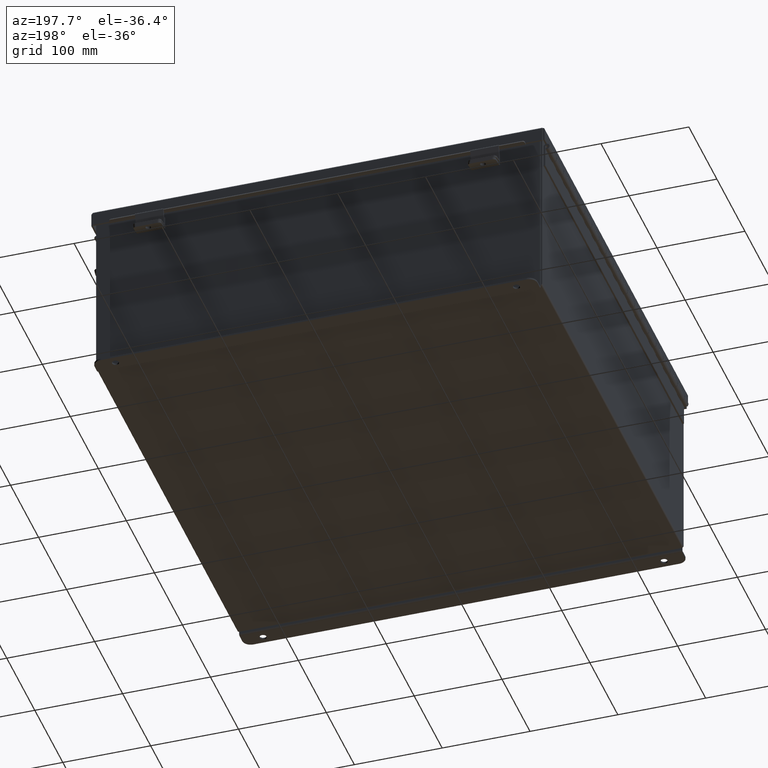
[diagram: clean part render]
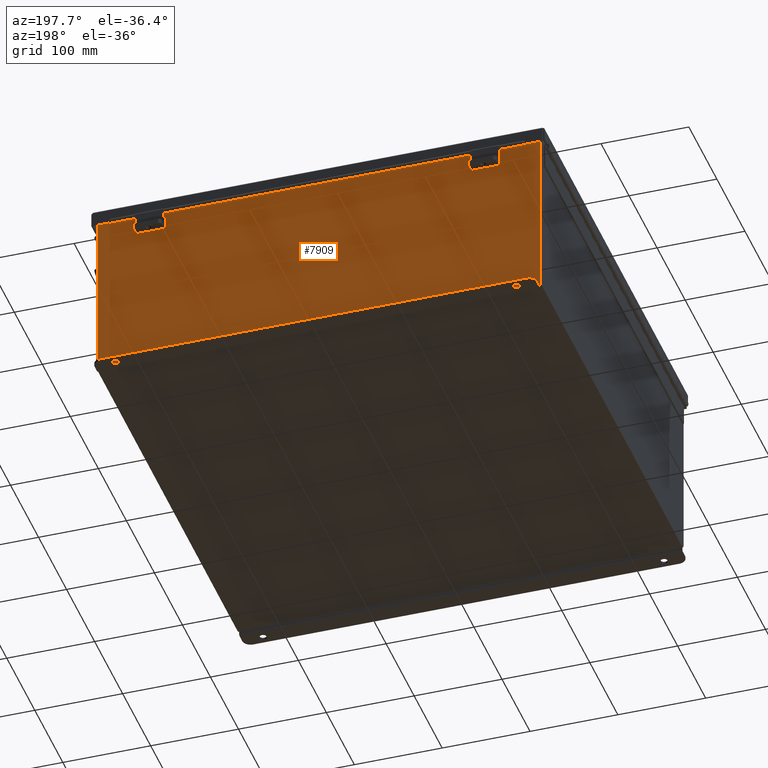
[diagram: same view with one face highlighted and labeled with its STEP entity id]
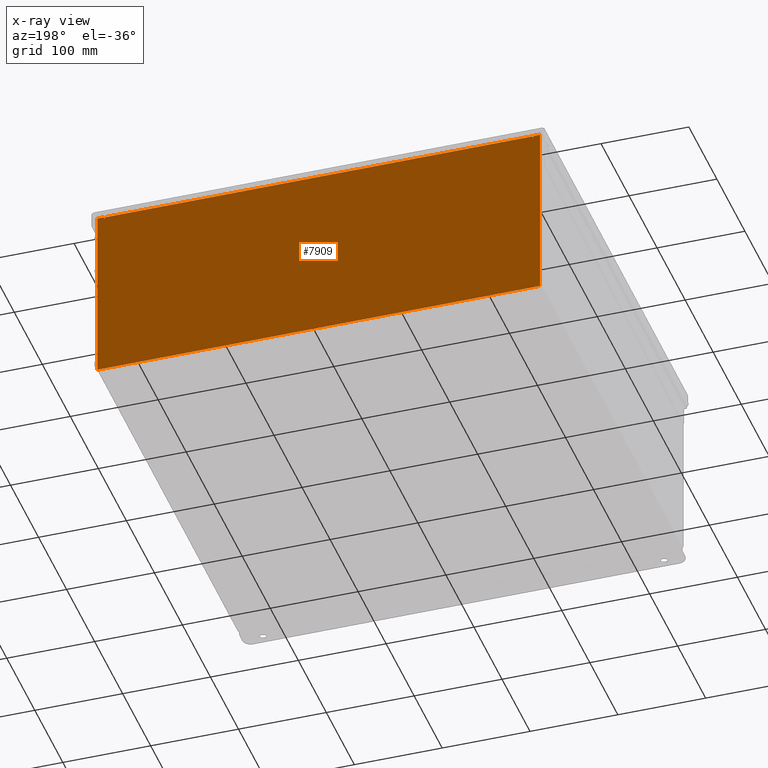
[diagram: x-ray of the same camera — body ghosted, the highlighted face saturated]
A machine part, auxiliary view. The second image highlights one B-rep face of the part: STEP entity #7909.
The next image is the same camera in x-ray: the body ghosted, the highlighted face saturated — about 0% of this face is hidden behind the body in this view.
In plain terms, the highlighted planar face has unit normal (0, -1, 0).
Its self-contained STEP definition (entity closure, byte-faithful):
#618 = CARTESIAN_POINT ( 'NONE',  ( 9.582299999999996500, 0.0000000000000000000, 3.874949999999997500 ) ) ;
#709 = DIRECTION ( 'NONE',  ( 1.000000000000000000, 0.0000000000000000000, 0.0000000000000000000 ) ) ;
#860 = ORIENTED_EDGE ( 'NONE', *, *, #12062, .F. ) ;
#1328 = VECTOR ( 'NONE', #10718, 39.37007874015748100 ) ;
#1798 = CARTESIAN_POINT ( 'NONE',  ( -9.925300000000001800, 0.0000000000000000000, 3.925299999999999600 ) ) ;
#1815 = CARTESIAN_POINT ( 'NONE',  ( -9.925300000000000000, -2.185478394931410600E-015, -4.099300000000000400 ) ) ;
#2075 = AXIS2_PLACEMENT_3D ( 'NONE', #4616, #19409, #13602 ) ;
#2421 = EDGE_CURVE ( 'NONE', #9136, #21324, #20930, .T. ) ;
#2528 = LINE ( 'NONE', #15608, #11093 ) ;
#2719 = EDGE_CURVE ( 'NONE', #9543, #9375, #7296, .T. ) ;
#2768 = VECTOR ( 'NONE', #18711, 39.37007874015748100 ) ;
#3151 = VERTEX_POINT ( 'NONE', #8329 ) ;
#3294 = FACE_OUTER_BOUND ( 'NONE', #8984, .T. ) ;
#3390 = DIRECTION ( 'NONE',  ( 0.0000000000000000000, 0.0000000000000000000, 1.000000000000000000 ) ) ;
#3398 = ORIENTED_EDGE ( 'NONE', *, *, #17483, .T. ) ;
#3565 = CARTESIAN_POINT ( 'NONE',  ( 9.619649999999829500, 0.0000000000000000000, -4.174263734318994100E-013 ) ) ;
#3776 = EDGE_CURVE ( 'NONE', #9328, #8691, #4513, .T. ) ;
#4206 = EDGE_CURVE ( 'NONE', #12433, #9328, #13657, .T. ) ;
#4513 = LINE ( 'NONE', #13518, #18319 ) ;
#4616 = CARTESIAN_POINT ( 'NONE',  ( 9.600974999999996500, 0.0000000000000000000, 3.874949999999997500 ) ) ;
#5480 = VECTOR ( 'NONE', #15644, 39.37007874015748100 ) ;
#5657 = DIRECTION ( 'NONE',  ( 0.0000000000000000000, 0.0000000000000000000, 1.000000000000000000 ) ) ;
#6043 = DIRECTION ( 'NONE',  ( 0.0000000000000000000, 0.0000000000000000000, -1.000000000000000000 ) ) ;
#6172 = EDGE_CURVE ( 'NONE', #10766, #9668, #2528, .T. ) ;
#6260 = LINE ( 'NONE', #22377, #6802 ) ;
#6594 = ORIENTED_EDGE ( 'NONE', *, *, #12271, .F. ) ;
#6802 = VECTOR ( 'NONE', #3390, 39.37007874015748100 ) ;
#6820 = LINE ( 'NONE', #16335, #19628 ) ;
#6940 = ORIENTED_EDGE ( 'NONE', *, *, #21971, .T. ) ;
#6977 = CARTESIAN_POINT ( 'NONE',  ( 9.619649999999996500, 0.0000000000000000000, 3.874949999999997500 ) ) ;
#7013 = CARTESIAN_POINT ( 'NONE',  ( -9.582300000000003600, 4.370956789862821100E-015, 3.912299999999998800 ) ) ;
#7212 = LINE ( 'NONE', #17027, #15906 ) ;
#7296 = LINE ( 'NONE', #7013, #2768 ) ;
#7606 = DIRECTION ( 'NONE',  ( 0.0000000000000000000, -1.000000000000000000, 0.0000000000000000000 ) ) ;
#7661 = VERTEX_POINT ( 'NONE', #1798 ) ;
#7735 = CARTESIAN_POINT ( 'NONE',  ( -9.925300000000001800, -2.185478394931410600E-015, -4.099300000000000400 ) ) ;
#7909 = ADVANCED_FACE ( 'NONE', ( #3294 ), #18025, .F. ) ;
#7929 = ORIENTED_EDGE ( 'NONE', *, *, #2719, .T. ) ;
#8120 = CARTESIAN_POINT ( 'NONE',  ( 9.925299999999998200, 0.0000000000000000000, 3.925299999999999600 ) ) ;
#8277 = CARTESIAN_POINT ( 'NONE',  ( -9.600975000000003600, 0.0000000000000000000, 3.874949999999997500 ) ) ;
#8329 = CARTESIAN_POINT ( 'NONE',  ( 9.619649999999998300, 0.0000000000000000000, 3.925299999999999600 ) ) ;
#8349 = DIRECTION ( 'NONE',  ( -0.0000000000000000000, -0.0000000000000000000, 1.000000000000000000 ) ) ;
#8691 = VERTEX_POINT ( 'NONE', #12725 ) ;
#8984 = EDGE_LOOP ( 'NONE', ( #20347, #19800, #6594, #7929, #11846, #10391, #13427, #3398, #15939, #860, #13125, #6940 ) ) ;
#9015 = CARTESIAN_POINT ( 'NONE',  ( -9.925300000000001800, 0.0000000000000000000, 3.925299999999999600 ) ) ;
#9136 = VERTEX_POINT ( 'NONE', #6977 ) ;
#9275 = LINE ( 'NONE', #17004, #13870 ) ;
#9328 = VERTEX_POINT ( 'NONE', #9403 ) ;
#9375 = VERTEX_POINT ( 'NONE', #21709 ) ;
#9403 = CARTESIAN_POINT ( 'NONE',  ( -9.619650000000003600, 0.0000000000000000000, 3.874949999999997500 ) ) ;
#9543 = VERTEX_POINT ( 'NONE', #13312 ) ;
#9668 = VERTEX_POINT ( 'NONE', #11848 ) ;
#9980 = DIRECTION ( 'NONE',  ( 0.0000000000000000000, 0.0000000000000000000, -1.000000000000000000 ) ) ;
#10064 = LINE ( 'NONE', #7735, #18797 ) ;
#10391 = ORIENTED_EDGE ( 'NONE', *, *, #2421, .F. ) ;
#10718 = DIRECTION ( 'NONE',  ( 1.000000000000000000, 0.0000000000000000000, 0.0000000000000000000 ) ) ;
#10766 = VERTEX_POINT ( 'NONE', #8120 ) ;
#11093 = VECTOR ( 'NONE', #6043, 39.37007874015748100 ) ;
#11846 = ORIENTED_EDGE ( 'NONE', *, *, #18518, .F. ) ;
#11848 = CARTESIAN_POINT ( 'NONE',  ( 9.925299999999998200, 0.0000000000000000000, -4.099300000000000400 ) ) ;
#12062 = EDGE_CURVE ( 'NONE', #20318, #9668, #10064, .T. ) ;
#12271 = EDGE_CURVE ( 'NONE', #9543, #12433, #9275, .T. ) ;
#12433 = VERTEX_POINT ( 'NONE', #19209 ) ;
#12725 = CARTESIAN_POINT ( 'NONE',  ( -9.619650000000003600, 0.0000000000000000000, 3.925299999999999600 ) ) ;
#13125 = ORIENTED_EDGE ( 'NONE', *, *, #14893, .T. ) ;
#13276 = DIRECTION ( 'NONE',  ( 0.0000000000000000000, 0.0000000000000000000, -1.000000000000000000 ) ) ;
#13312 = CARTESIAN_POINT ( 'NONE',  ( -9.582300000000003600, 4.370956789862821100E-015, 3.912299999999998800 ) ) ;
#13427 = ORIENTED_EDGE ( 'NONE', *, *, #17335, .F. ) ;
#13504 = DIRECTION ( 'NONE',  ( -0.0000000000000000000, 1.000000000000000000, -0.0000000000000000000 ) ) ;
#13518 = CARTESIAN_POINT ( 'NONE',  ( -9.619650000000003600, 0.0000000000000000000, 0.0000000000000000000 ) ) ;
#13602 = DIRECTION ( 'NONE',  ( 0.0000000000000000000, 0.0000000000000000000, -1.000000000000000000 ) ) ;
#13657 = CIRCLE ( 'NONE', #19194, 0.01867500000000003900 ) ;
#13870 = VECTOR ( 'NONE', #9980, 39.37007874015748100 ) ;
#14139 = LINE ( 'NONE', #3565, #5480 ) ;
#14493 = CARTESIAN_POINT ( 'NONE',  ( 0.0000000000000000000, 0.0000000000000000000, 0.0000000000000000000 ) ) ;
#14893 = EDGE_CURVE ( 'NONE', #20318, #7661, #7212, .T. ) ;
#15608 = CARTESIAN_POINT ( 'NONE',  ( 9.925299999999998200, 0.0000000000000000000, 3.925299999999999600 ) ) ;
#15644 = DIRECTION ( 'NONE',  ( -4.340572780399863600E-014, 0.0000000000000000000, -1.000000000000000000 ) ) ;
#15906 = VECTOR ( 'NONE', #8349, 39.37007874015748100 ) ;
#15939 = ORIENTED_EDGE ( 'NONE', *, *, #6172, .T. ) ;
#16335 = CARTESIAN_POINT ( 'NONE',  ( -9.925300000000001800, 0.0000000000000000000, 3.925299999999999600 ) ) ;
#16416 = DIRECTION ( 'NONE',  ( 1.000000000000000000, 8.208677865577646300E-017, -0.0000000000000000000 ) ) ;
#17004 = CARTESIAN_POINT ( 'NONE',  ( -9.582300000000003600, 0.0000000000000000000, 0.0000000000000000000 ) ) ;
#17027 = CARTESIAN_POINT ( 'NONE',  ( -9.925300000000001800, 0.0000000000000000000, 3.925299999999999600 ) ) ;
#17335 = EDGE_CURVE ( 'NONE', #3151, #9136, #14139, .T. ) ;
#17483 = EDGE_CURVE ( 'NONE', #3151, #10766, #6820, .T. ) ;
#17534 = AXIS2_PLACEMENT_3D ( 'NONE', #14493, #7606, #19804 ) ;
#18025 = PLANE ( 'NONE',  #17534 ) ;
#18319 = VECTOR ( 'NONE', #5657, 39.37007874015748100 ) ;
#18518 = EDGE_CURVE ( 'NONE', #21324, #9375, #6260, .T. ) ;
#18711 = DIRECTION ( 'NONE',  ( 1.000000000000000000, 0.0000000000000000000, 0.0000000000000000000 ) ) ;
#18797 = VECTOR ( 'NONE', #16416, 39.37007874015748100 ) ;
#19194 = AXIS2_PLACEMENT_3D ( 'NONE', #8277, #13504, #13276 ) ;
#19209 = CARTESIAN_POINT ( 'NONE',  ( -9.582300000000003600, 0.0000000000000000000, 3.874949999999997500 ) ) ;
#19409 = DIRECTION ( 'NONE',  ( -0.0000000000000000000, 1.000000000000000000, -0.0000000000000000000 ) ) ;
#19628 = VECTOR ( 'NONE', #709, 39.37007874015748100 ) ;
#19753 = LINE ( 'NONE', #9015, #1328 ) ;
#19800 = ORIENTED_EDGE ( 'NONE', *, *, #4206, .F. ) ;
#19804 = DIRECTION ( 'NONE',  ( 0.0000000000000000000, -0.0000000000000000000, -1.000000000000000000 ) ) ;
#20318 = VERTEX_POINT ( 'NONE', #1815 ) ;
#20347 = ORIENTED_EDGE ( 'NONE', *, *, #3776, .F. ) ;
#20930 = CIRCLE ( 'NONE', #2075, 0.01867500000000003900 ) ;
#21324 = VERTEX_POINT ( 'NONE', #618 ) ;
#21709 = CARTESIAN_POINT ( 'NONE',  ( 9.582299999999996500, 0.0000000000000000000, 3.912299999999998800 ) ) ;
#21971 = EDGE_CURVE ( 'NONE', #7661, #8691, #19753, .T. ) ;
#22377 = CARTESIAN_POINT ( 'NONE',  ( 9.582299999999996500, 0.0000000000000000000, 0.0000000000000000000 ) ) ;